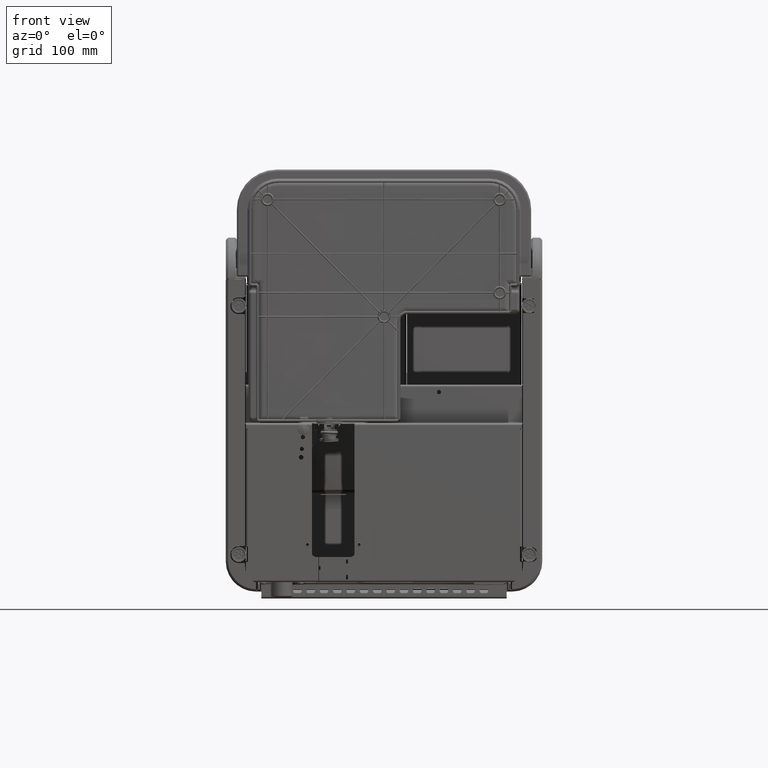
[diagram: clean part render]
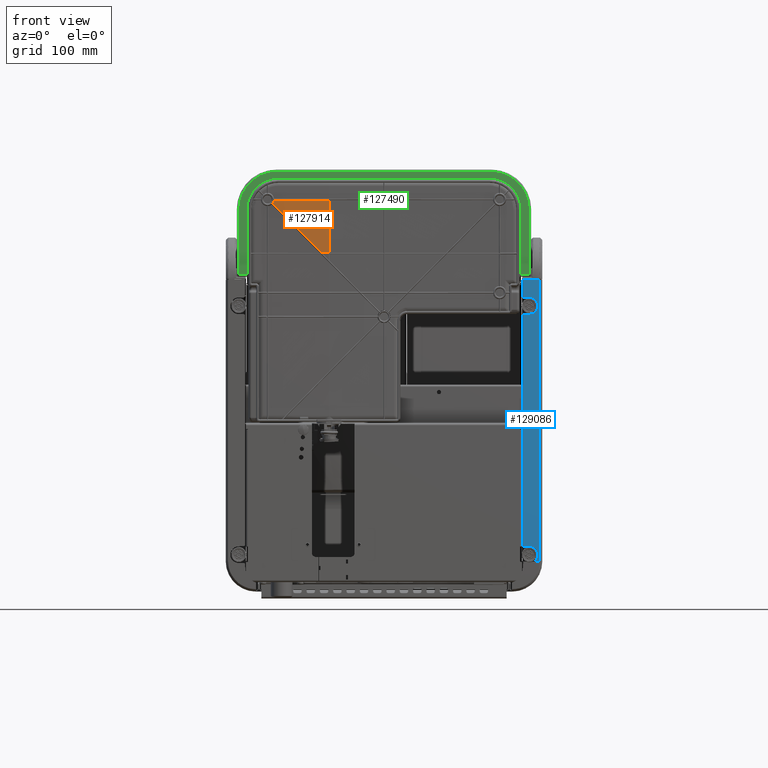
[diagram: same view with three faces highlighted in distinct colors, each labeled with its STEP entity id]
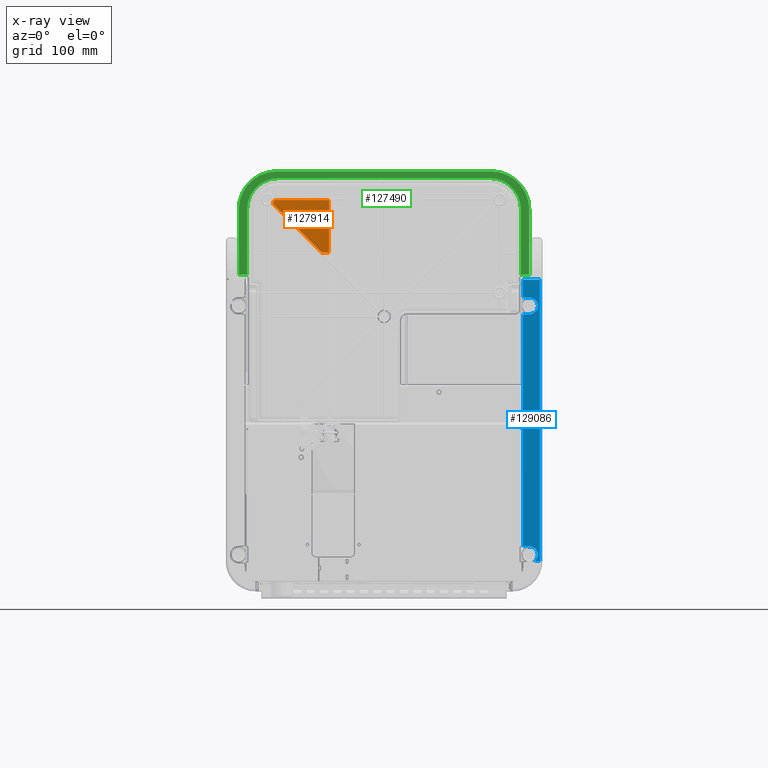
[diagram: x-ray of the same camera — body ghosted, the three highlighted faces saturated]
A machine part, front view with three faces highlighted in distinct colors.
The next image is the same camera in x-ray (body ghosted, the three faces saturated) — at least one of them is partly hidden behind the body in this view.
Their STEP definitions:

[orange] entity #127914 — the highlighted planar face has unit normal (0.0175, 0.9997, -0.0174).
#20193=ELLIPSE('',#133803,7.99924793662251,7.99680850214472);
#23683=FACE_OUTER_BOUND('',#29637,.T.);
#29637=EDGE_LOOP('',(#100312,#100313,#100314,#100315,#100316));
#36405=LINE('',#191004,#46264);
#36407=LINE('',#191035,#46266);
#36904=LINE('',#202675,#46763);
#37121=LINE('',#204701,#46980);
#46264=VECTOR('',#148473,10.);
#46266=VECTOR('',#148487,10.);
#46763=VECTOR('',#151004,10.);
#46980=VECTOR('',#152117,10.);
#56406=VERTEX_POINT('',#190976);
#56407=VERTEX_POINT('',#190999);
#56408=VERTEX_POINT('',#191003);
#56411=VERTEX_POINT('',#191033);
#57395=VERTEX_POINT('',#202673);
#72674=EDGE_CURVE('',#56407,#56406,#20193,.T.);
#72675=EDGE_CURVE('',#56406,#56408,#36405,.T.);
#72682=EDGE_CURVE('',#56411,#56408,#36407,.T.);
#74276=EDGE_CURVE('',#57395,#56407,#36904,.T.);
#74780=EDGE_CURVE('',#56411,#57395,#37121,.T.);
#100312=ORIENTED_EDGE('',*,*,#74780,.F.);
#100313=ORIENTED_EDGE('',*,*,#72682,.T.);
#100314=ORIENTED_EDGE('',*,*,#72675,.F.);
#100315=ORIENTED_EDGE('',*,*,#72674,.F.);
#100316=ORIENTED_EDGE('',*,*,#74276,.F.);
#124810=PLANE('',#135492);
#127914=ADVANCED_FACE('',(#23683),#124810,.F.);
#133803=AXIS2_PLACEMENT_3D('',#191001,#148469,#148470);
#135492=AXIS2_PLACEMENT_3D('',#206805,#152619,#152620);
#148469=DIRECTION('center_axis',(-0.0174524064373004,-0.999695413509548,
0.0174497483512251));
#148470=DIRECTION('ref_axis',(0.706945239551009,-0.0246795504005606,-0.706837568376351));
#148473=DIRECTION('',(0.999847683559775,-0.0174524062348674,0.000152304842605171));
#148487=DIRECTION('',(-7.63688918605628E-13,0.0174524064372715,0.999847695156391));
#151004=DIRECTION('',(-0.704606520933645,0.0246794158369041,0.709168934099439));
#152117=DIRECTION('',(-0.999847590744455,0.0174577224061316,0.000152351234602738));
#152619=DIRECTION('center_axis',(0.0174524064373004,0.999695413509548,-0.0174497483512251));
#152620=DIRECTION('ref_axis',(0.999847695156391,-0.0174497483512541,0.000304586491215412));
#190976=CARTESIAN_POINT('',(-131.995273235913,3.37641280151487,261.052112841885));
#190999=CARTESIAN_POINT('',(-133.715371158054,3.33433078225933,256.92087563209));
#191001=CARTESIAN_POINT('Origin',(-139.942916827619,3.53061531635395,261.937514759668));
#191003=CARTESIAN_POINT('',(-66.0741721058852,2.22575570115039,261.062154474323));
#191004=CARTESIAN_POINT('',(51.4581358875783,0.174221633960795,261.080057940985));
#191033=CARTESIAN_POINT('',(-66.0741721058369,1.12139703094005,197.793488631332));
#191035=CARTESIAN_POINT('',(-66.0741721058042,0.375480354938371,155.059950883423));
#202673=CARTESIAN_POINT('',(-74.9697248376098,1.27671679334981,197.794844086358));
#202675=CARTESIAN_POINT('',(-77.4024850169517,1.36192619507077,200.243356684591));
#204701=CARTESIAN_POINT('',(-45.1249345233079,0.75561530808409,197.790296502613));
#206805=CARTESIAN_POINT('Origin',(-15.087379981644,-0.514361864145944,155.075483137172));

[blue] entity #129086 — the highlighted planar face has unit normal (-0.0087, 1, 0).
#21058=ELLIPSE('',#137637,2.00007615677147,2.);
#21072=ELLIPSE('',#137724,10.0003807838574,10.);
#21074=ELLIPSE('',#137727,2.00007615677147,2.);
#21076=ELLIPSE('',#137730,10.0003807838574,10.);
#21077=ELLIPSE('',#137731,2.00007615677147,2.);
#24855=FACE_OUTER_BOUND('',#30825,.T.);
#30825=EDGE_LOOP('',(#106844,#106845,#106846,#106847,#106848,#106849,#106850,
#106851,#106852,#106853,#106854,#106855,#106856));
#38833=LINE('',#230533,#48692);
#38835=LINE('',#230540,#48694);
#39032=LINE('',#230965,#48891);
#39056=LINE('',#231260,#48915);
#39158=LINE('',#231690,#49017);
#39174=LINE('',#231729,#49033);
#39175=LINE('',#231732,#49034);
#39176=LINE('',#231735,#49035);
#48692=VECTOR('',#158557,10.);
#48694=VECTOR('',#158563,10.);
#48891=VECTOR('',#158850,10.);
#48915=VECTOR('',#158924,10.);
#49017=VECTOR('',#159054,10.);
#49033=VECTOR('',#159092,10.);
#49034=VECTOR('',#159095,10.);
#49035=VECTOR('',#159098,10.);
#60325=VERTEX_POINT('',#230530);
#60326=VERTEX_POINT('',#230532);
#60328=VERTEX_POINT('',#230537);
#60329=VERTEX_POINT('',#230539);
#60333=VERTEX_POINT('',#230548);
#60334=VERTEX_POINT('',#230550);
#60512=VERTEX_POINT('',#230963);
#60547=VERTEX_POINT('',#231259);
#60632=VERTEX_POINT('',#231716);
#60634=VERTEX_POINT('',#231722);
#60636=VERTEX_POINT('',#231728);
#60637=VERTEX_POINT('',#231730);
#60638=VERTEX_POINT('',#231733);
#78749=EDGE_CURVE('',#60326,#60325,#38833,.T.);
#78752=EDGE_CURVE('',#60328,#60329,#38835,.T.);
#78757=EDGE_CURVE('',#60334,#60333,#21058,.T.);
#78961=EDGE_CURVE('',#60325,#60512,#39032,.T.);
#79011=EDGE_CURVE('',#60326,#60547,#39056,.T.);
#79140=EDGE_CURVE('',#60334,#60512,#39158,.T.);
#79155=EDGE_CURVE('',#60547,#60632,#21072,.T.);
#79158=EDGE_CURVE('',#60634,#60329,#21074,.T.);
#79161=EDGE_CURVE('',#60636,#60333,#39174,.T.);
#79162=EDGE_CURVE('',#60637,#60636,#21076,.T.);
#79163=EDGE_CURVE('',#60634,#60637,#39175,.T.);
#79164=EDGE_CURVE('',#60328,#60638,#21077,.T.);
#79165=EDGE_CURVE('',#60632,#60638,#39176,.T.);
#106844=ORIENTED_EDGE('',*,*,#78749,.T.);
#106845=ORIENTED_EDGE('',*,*,#78961,.T.);
#106846=ORIENTED_EDGE('',*,*,#79140,.F.);
#106847=ORIENTED_EDGE('',*,*,#78757,.T.);
#106848=ORIENTED_EDGE('',*,*,#79161,.F.);
#106849=ORIENTED_EDGE('',*,*,#79162,.F.);
#106850=ORIENTED_EDGE('',*,*,#79163,.F.);
#106851=ORIENTED_EDGE('',*,*,#79158,.T.);
#106852=ORIENTED_EDGE('',*,*,#78752,.F.);
#106853=ORIENTED_EDGE('',*,*,#79164,.T.);
#106854=ORIENTED_EDGE('',*,*,#79165,.F.);
#106855=ORIENTED_EDGE('',*,*,#79155,.F.);
#106856=ORIENTED_EDGE('',*,*,#79011,.F.);
#125098=PLANE('',#137729);
#129086=ADVANCED_FACE('',(#24855),#125098,.F.);
#137637=AXIS2_PLACEMENT_3D('',#230551,#158571,#158572);
#137724=AXIS2_PLACEMENT_3D('',#231717,#159078,#159079);
#137727=AXIS2_PLACEMENT_3D('',#231723,#159085,#159086);
#137729=AXIS2_PLACEMENT_3D('',#231727,#159090,#159091);
#137730=AXIS2_PLACEMENT_3D('',#231731,#159093,#159094);
#137731=AXIS2_PLACEMENT_3D('',#231734,#159096,#159097);
#158557=DIRECTION('',(2.39634453371566E-14,-1.20310309517288E-14,1.));
#158563=DIRECTION('',(2.39397756534413E-14,-1.20312375139292E-14,1.));
#158571=DIRECTION('center_axis',(0.00872653549835961,-0.999961923064171,
-1.2239690703333E-14));
#158572=DIRECTION('ref_axis',(-0.999961923064172,-0.00872653549835961,-4.53345780191535E-13));
#158850=DIRECTION('',(-0.99992385047757,-0.00872620324392999,0.00872620324396818));
#158924=DIRECTION('',(-0.999961923064171,-0.00872653549835961,2.39625563272901E-14));
#159054=DIRECTION('',(2.39397756534413E-14,-1.20312375139292E-14,1.));
#159078=DIRECTION('center_axis',(0.00872653549835961,-0.999961923064171,
-1.2239690703333E-14));
#159079=DIRECTION('ref_axis',(-0.999961923064171,-0.00872653549835961,2.39625563272901E-14));
#159085=DIRECTION('center_axis',(0.00872653549835961,-0.999961923064171,
-1.2239690703333E-14));
#159086=DIRECTION('ref_axis',(-0.999961923064172,-0.00872653549835961,-2.15489554346713E-13));
#159090=DIRECTION('center_axis',(-0.00872653549835961,0.999961923064171,
1.2239690703333E-14));
#159091=DIRECTION('ref_axis',(0.999961923064171,0.00872653549835961,-2.39625603260028E-14));
#159092=DIRECTION('',(-0.999809635615327,-0.00872520650592757,0.0174517420957265));
#159093=DIRECTION('center_axis',(0.00872653549835961,-0.999961923064171,
-1.2239690703333E-14));
#159094=DIRECTION('ref_axis',(-0.999961923064171,-0.00872653549835961,2.39625563272901E-14));
#159095=DIRECTION('',(0.999809635614985,0.00872520650592415,0.0174517421153156));
#159096=DIRECTION('center_axis',(0.00872653549835961,-0.999961923064171,
-1.2239690703333E-14));
#159097=DIRECTION('ref_axis',(-0.999961923064172,-0.0087265354983596,-1.23338653017622E-12));
#159098=DIRECTION('',(-0.999809635615156,-0.00872520650592607,0.0174517421055458));
#230530=CARTESIAN_POINT('',(187.237451731501,-7.42356815003087,165.321645060759));
#230532=CARTESIAN_POINT('',(187.237451731493,-7.4235681500268,-172.800000000005));
#230533=CARTESIAN_POINT('',(187.237451731501,-7.42356815003087,165.499999999999));
#230537=CARTESIAN_POINT('',(166.800000000027,-7.60192308926726,-152.893441673904));
#230539=CARTESIAN_POINT('',(166.800000000034,-7.60192308927057,121.893441847484));
#230540=CARTESIAN_POINT('',(166.800000000031,-7.60192308926892,-15.4173027368846));
#230548=CARTESIAN_POINT('',(168.765095187179,-7.58477396337639,144.106863109363));
#230550=CARTESIAN_POINT('',(166.800000000034,-7.60192308927086,146.106558499676));
#230551=CARTESIAN_POINT('Origin',(168.800000000034,-7.58446935368937,146.106558499676));
#230963=CARTESIAN_POINT('',(166.800000000035,-7.60192308927109,165.5));
#230965=CARTESIAN_POINT('',(162.909105411139,-7.63587841193611,165.533955322665));
#231259=CARTESIAN_POINT('',(181.057795138887,-7.47749719610267,-172.800000000005));
#231260=CARTESIAN_POINT('',(189.938094228839,-7.40000000000239,-172.800000000005));
#231690=CARTESIAN_POINT('',(166.800000000031,-7.60192308926892,-15.4173027368846));
#231716=CARTESIAN_POINT('',(174.9745240644,-7.5305850985052,-155.001523048437));
#231717=CARTESIAN_POINT('Origin',(174.800000000027,-7.53210814694116,-165.000000000001));
#231722=CARTESIAN_POINT('',(168.76509518714,-7.58477396337649,123.893137237796));
#231723=CARTESIAN_POINT('Origin',(168.800000000034,-7.58446935368908,121.893441847484));
#231727=CARTESIAN_POINT('Origin',(153.882242913693,-7.71465464751655,165.5));
#231728=CARTESIAN_POINT('',(174.974524067437,-7.53058509848235,143.998477125152));
#231729=CARTESIAN_POINT('',(150.648047196027,-7.74287904595376,144.423097358179));
#231730=CARTESIAN_POINT('',(174.974524061377,-7.530585098535,124.001523222024));
#231731=CARTESIAN_POINT('Origin',(174.800000000034,-7.53210814694476,133.999999999999));
#231732=CARTESIAN_POINT('',(164.828228289601,-7.61913048030107,123.824418970447));
#231733=CARTESIAN_POINT('',(168.765095187153,-7.58477396337297,-154.893137064217));
#231734=CARTESIAN_POINT('Origin',(168.800000000027,-7.58446935368577,-152.893441673904));
#231735=CARTESIAN_POINT('',(148.03936665935,-7.76564465610197,-154.531368127079));

[green] entity #127490 — the highlighted planar face has unit normal (0, 1, 0).
#16339=CIRCLE('',#134725,45.6844939859766);
#16340=CIRCLE('',#134726,45.6844939859766);
#16341=CIRCLE('',#134727,37.5472490852049);
#16342=CIRCLE('',#134728,37.5472490852049);
#23259=FACE_OUTER_BOUND('',#29210,.T.);
#29210=EDGE_LOOP('',(#98405,#98406,#98407,#98408,#98409,#98410,#98411,#98412,
#98413,#98414,#98415,#98416));
#36859=LINE('',#202324,#46718);
#36860=LINE('',#202326,#46719);
#36861=LINE('',#202328,#46720);
#36862=LINE('',#202332,#46721);
#36863=LINE('',#202336,#46722);
#36864=LINE('',#202338,#46723);
#36865=LINE('',#202340,#46724);
#36866=LINE('',#202344,#46725);
#46718=VECTOR('',#150767,10.);
#46719=VECTOR('',#150768,10.);
#46720=VECTOR('',#150769,10.);
#46721=VECTOR('',#150772,10.);
#46722=VECTOR('',#150775,10.);
#46723=VECTOR('',#150776,10.);
#46724=VECTOR('',#150777,10.);
#46725=VECTOR('',#150780,10.);
#57341=VERTEX_POINT('',#202322);
#57342=VERTEX_POINT('',#202323);
#57343=VERTEX_POINT('',#202325);
#57344=VERTEX_POINT('',#202327);
#57345=VERTEX_POINT('',#202329);
#57346=VERTEX_POINT('',#202331);
#57347=VERTEX_POINT('',#202333);
#57348=VERTEX_POINT('',#202335);
#57349=VERTEX_POINT('',#202337);
#57350=VERTEX_POINT('',#202339);
#57351=VERTEX_POINT('',#202341);
#57352=VERTEX_POINT('',#202343);
#74173=EDGE_CURVE('',#57341,#57342,#36859,.T.);
#74174=EDGE_CURVE('',#57343,#57341,#36860,.T.);
#74175=EDGE_CURVE('',#57344,#57343,#36861,.T.);
#74176=EDGE_CURVE('',#57345,#57344,#16339,.T.);
#74177=EDGE_CURVE('',#57346,#57345,#36862,.T.);
#74178=EDGE_CURVE('',#57347,#57346,#16340,.T.);
#74179=EDGE_CURVE('',#57348,#57347,#36863,.T.);
#74180=EDGE_CURVE('',#57349,#57348,#36864,.T.);
#74181=EDGE_CURVE('',#57350,#57349,#36865,.T.);
#74182=EDGE_CURVE('',#57351,#57350,#16341,.T.);
#74183=EDGE_CURVE('',#57352,#57351,#36866,.T.);
#74184=EDGE_CURVE('',#57342,#57352,#16342,.T.);
#98405=ORIENTED_EDGE('',*,*,#74173,.F.);
#98406=ORIENTED_EDGE('',*,*,#74174,.F.);
#98407=ORIENTED_EDGE('',*,*,#74175,.F.);
#98408=ORIENTED_EDGE('',*,*,#74176,.F.);
#98409=ORIENTED_EDGE('',*,*,#74177,.F.);
#98410=ORIENTED_EDGE('',*,*,#74178,.F.);
#98411=ORIENTED_EDGE('',*,*,#74179,.F.);
#98412=ORIENTED_EDGE('',*,*,#74180,.F.);
#98413=ORIENTED_EDGE('',*,*,#74181,.F.);
#98414=ORIENTED_EDGE('',*,*,#74182,.F.);
#98415=ORIENTED_EDGE('',*,*,#74183,.F.);
#98416=ORIENTED_EDGE('',*,*,#74184,.F.);
#124733=PLANE('',#134724);
#127490=ADVANCED_FACE('',(#23259),#124733,.F.);
#134724=AXIS2_PLACEMENT_3D('',#202321,#150765,#150766);
#134725=AXIS2_PLACEMENT_3D('',#202330,#150770,#150771);
#134726=AXIS2_PLACEMENT_3D('',#202334,#150773,#150774);
#134727=AXIS2_PLACEMENT_3D('',#202342,#150778,#150779);
#134728=AXIS2_PLACEMENT_3D('',#202345,#150781,#150782);
#150765=DIRECTION('center_axis',(3.60156811657677E-15,1.,1.20175089458818E-14));
#150766=DIRECTION('ref_axis',(1.,-3.60156811658595E-15,7.63602998568973E-13));
#150767=DIRECTION('',(-7.63602998568973E-13,-1.2017508945879E-14,1.));
#150768=DIRECTION('',(-1.,3.60156811658595E-15,-7.63602998568973E-13));
#150769=DIRECTION('',(7.63194229556599E-13,1.2017508945879E-14,-1.));
#150770=DIRECTION('center_axis',(3.60156811657677E-15,1.,1.20175089458818E-14));
#150771=DIRECTION('ref_axis',(0.707106781186008,-1.10443553067443E-14,0.707106781187087));
#150772=DIRECTION('',(1.,-3.60156811658595E-15,7.63201164701726E-13));
#150773=DIRECTION('center_axis',(3.60156811657677E-15,1.,1.20175089458818E-14));
#150774=DIRECTION('ref_axis',(-0.707106781187087,-5.95096883045789E-15,
0.707106781186008));
#150775=DIRECTION('',(-7.6348606567409E-13,-1.2017508945879E-14,1.));
#150776=DIRECTION('',(-1.,3.60156811658594E-15,-7.62639333014145E-13));
#150777=DIRECTION('',(7.63846481045032E-13,1.2017508945879E-14,-1.));
#150778=DIRECTION('center_axis',(-3.60156811657677E-15,-1.,-1.20175089458818E-14));
#150779=DIRECTION('ref_axis',(-0.707106781187087,-5.95096883045789E-15,
0.707106781186008));
#150780=DIRECTION('',(-1.,3.60156811658595E-15,-7.63602998568973E-13));
#150781=DIRECTION('center_axis',(-3.60156811657677E-15,-1.,-1.20175089458818E-14));
#150782=DIRECTION('ref_axis',(0.707106781186008,-1.10443553067443E-14,0.707106781187087));
#202321=CARTESIAN_POINT('Origin',(-14.1374207967725,21.5999999999977,163.821777377947));
#202322=CARTESIAN_POINT('',(164.547247962179,21.599999999997,171.407566007415));
#202323=CARTESIAN_POINT('',(164.547247962119,21.599999999996,249.917059993392));
#202324=CARTESIAN_POINT('',(164.547247962138,21.5999999999963,224.869418685738));
#202325=CARTESIAN_POINT('',(174.50949286295,21.5999999999969,171.407566007423));
#202326=CARTESIAN_POINT('',(81.3437890400976,21.5999999999973,171.407566007352));
#202327=CARTESIAN_POINT('',(174.50949286289,21.599999999996,249.9170599934));
#202328=CARTESIAN_POINT('',(174.509492862905,21.5999999999962,230.869418685745));
#202329=CARTESIAN_POINT('',(128.824998876879,21.5999999999956,295.601553979341));
#202330=CARTESIAN_POINT('Origin',(128.824998876914,21.5999999999961,249.917059993365));
#202331=CARTESIAN_POINT('',(-128.825001123121,21.5999999999965,295.601553979145));
#202332=CARTESIAN_POINT('',(-95.4812109599972,21.5999999999964,295.60155397917));
#202333=CARTESIAN_POINT('',(-174.509495109063,21.5999999999972,249.917059993133));
#202334=CARTESIAN_POINT('Origin',(-128.825001123086,21.5999999999971,249.917059993168));
#202335=CARTESIAN_POINT('',(-174.509495109003,21.5999999999982,171.407566007157));
#202336=CARTESIAN_POINT('',(-174.509495108999,21.5999999999982,166.456918685479));
#202337=CARTESIAN_POINT('',(-164.547250208231,21.5999999999981,171.407566007164));
#202338=CARTESIAN_POINT('',(-88.5687109599023,21.5999999999979,171.407566007222));
#202339=CARTESIAN_POINT('',(-164.547250208291,21.5999999999972,249.917059993141));
#202340=CARTESIAN_POINT('',(-164.547250208161,21.5999999999993,78.9569186854866));
#202341=CARTESIAN_POINT('',(-127.000001123115,21.5999999999966,287.464309078375));
#202342=CARTESIAN_POINT('Origin',(-127.000001123086,21.5999999999971,249.91705999317));
#202343=CARTESIAN_POINT('',(126.999998876885,21.5999999999957,287.464309078568));
#202344=CARTESIAN_POINT('',(-88.568710959991,21.5999999999965,287.464309078404));
#202345=CARTESIAN_POINT('Origin',(126.999998876914,21.5999999999962,249.917059993364));